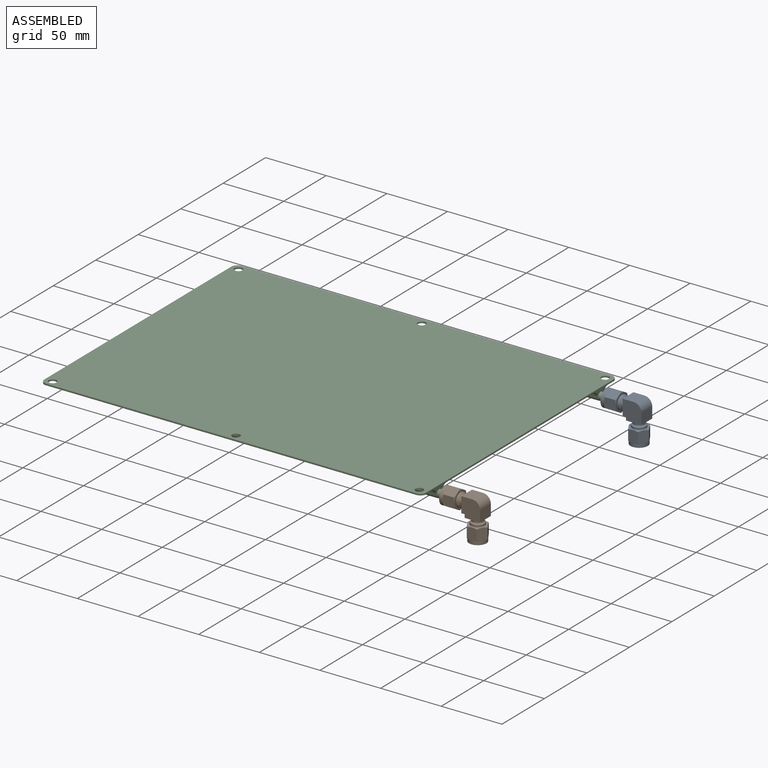
[diagram: assembled view]
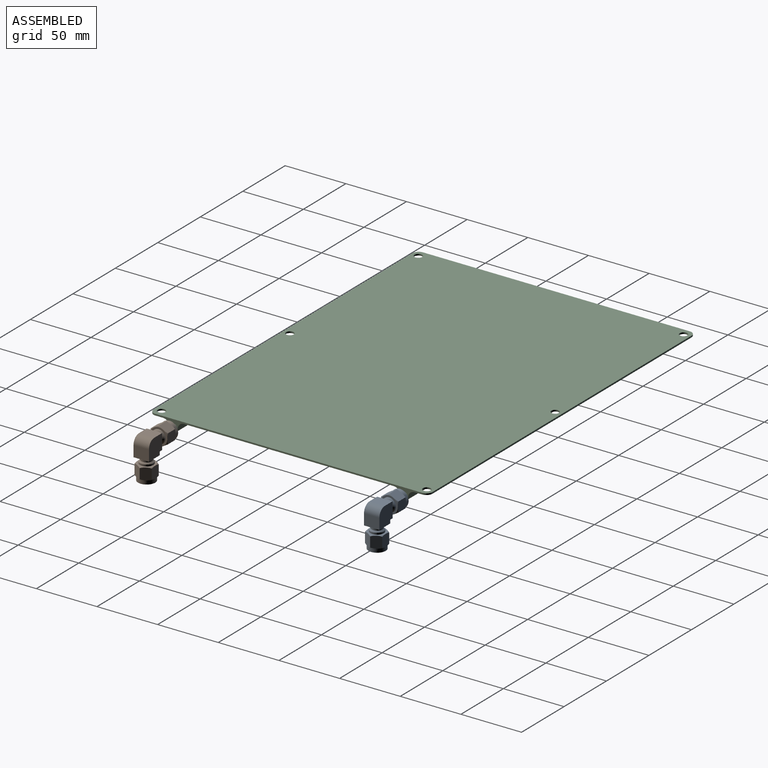
[diagram: assembled view, second angle]
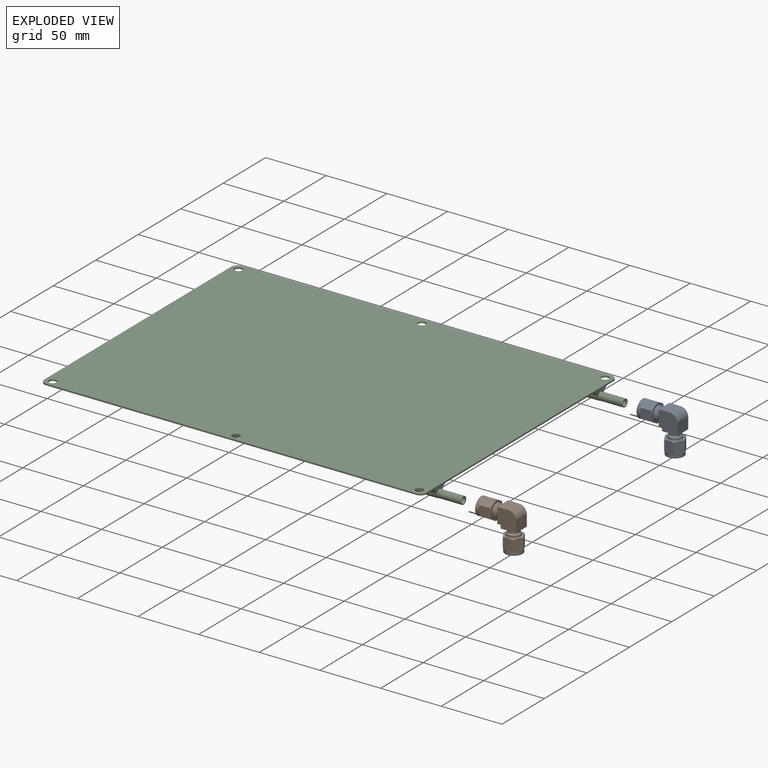
[diagram: exploded view]
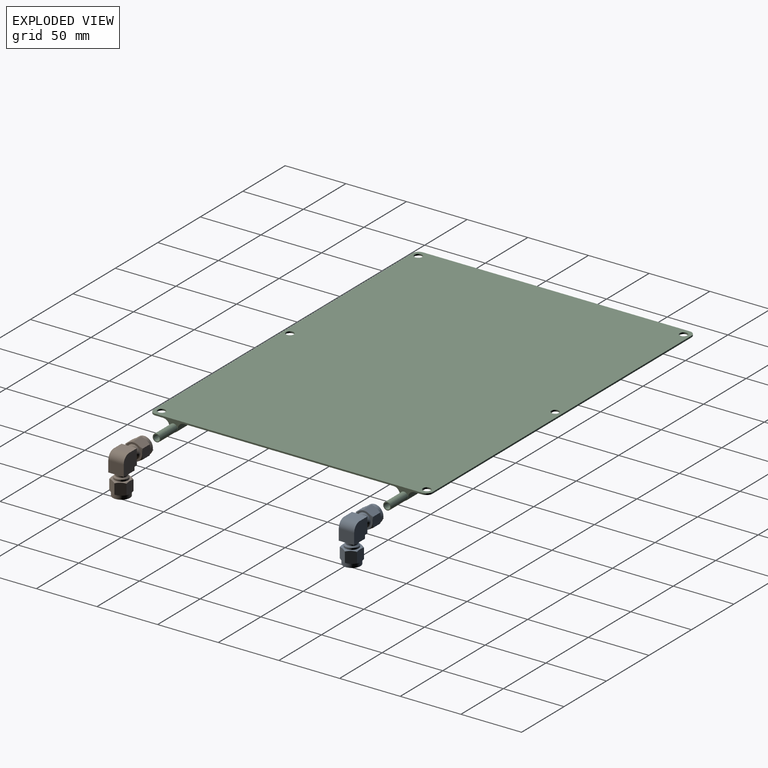
[diagram: exploded view, second angle]
ASSEMBLY  parts=3 mates=6
PART A: 64 faces, bbox 35.1x16.4x35.1 mm
  f0: cylinder r=3.17mm len=15.24mm, axis (1,0,0), area 304mm2, adj f1,f2
  f1: plane 6.35x6.35mm, normal (-1,0,0), area 13.4mm2, adj f0,f3
  f2: plane 14.22x14.22mm, normal (-1,0,0), area 127.2mm2, adj f0,f5
  f3: cylinder r=2.41mm len=11.68mm, axis (1,0,0), area 165.5mm2, adj f1,f4,f6
  f4: sphere r=2.41mm, area 18.3mm2, adj f3,f6
  f5: cylinder r=7.11mm len=14.22mm, axis (1,0,0), area 136.2mm2, adj f2,f7,f8,f9,f10,f11,f12
  f6: cylinder r=2.41mm len=11.68mm, axis (0,0,-1), area 165.5mm2, adj f3,f4,f13
  f7: cone r=7.66mm half-angle=60deg, axis (1,0,0), area 3.1mm2, adj f5,f14,f15
  f8: cone r=7.66mm half-angle=60deg, axis (1,0,0), area 3.1mm2, adj f5,f15,f16
  f9: cone r=7.66mm half-angle=60deg, axis (1,0,0), area 3.1mm2, adj f5,f16,f17
  f10: cone r=7.66mm half-angle=60deg, axis (1,0,0), area 3.1mm2, adj f5,f17,f18
  f11: cone r=7.66mm half-angle=60deg, axis (1,0,0), area 3.1mm2, adj f5,f18,f19
  f12: cone r=7.66mm half-angle=60deg, axis (1,0,0), area 3.1mm2, adj f5,f14,f19
  f13: plane 6.35x6.35mm, normal (0,0,-1), area 13.4mm2, adj f6,f20
  f14: plane 9.65x8.21mm, normal (0,1,0), area 75.7mm2, adj f7,f12,f15,f19,f21,f22
  f15: plane 9.65x7.11mm, normal (0,0.5,-0.87), area 75.7mm2, adj f7,f8,f14,f16,f22,f23
  f16: plane 9.65x7.11mm, normal (0,-0.5,-0.87), area 75.7mm2, adj f8,f9,f15,f17,f23,f24
  f17: plane 9.65x8.21mm, normal (0,-1,0), area 75.7mm2, adj f9,f10,f16,f18,f24,f25
  f18: plane 9.65x7.11mm, normal (0,-0.5,0.87), area 75.7mm2, adj f10,f11,f17,f19,f25,f26
  f19: plane 9.65x7.11mm, normal (0,0.5,0.87), area 75.7mm2, adj f11,f12,f14,f18,f21,f26
  f20: cylinder r=3.17mm len=15.24mm, axis (0,0,1), area 304mm2, adj f13,f27
  f21: cone r=7.66mm half-angle=60deg, axis (-1,0,0), area 3.1mm2, adj f14,f19,f28
  f22: cone r=7.66mm half-angle=60deg, axis (-1,0,0), area 3.1mm2, adj f14,f15,f28
  f23: cone r=7.66mm half-angle=60deg, axis (-1,0,0), area 3.1mm2, adj f15,f16,f28
  f24: cone r=7.66mm half-angle=60deg, axis (-1,0,0), area 3.1mm2, adj f16,f17,f28
  f25: cone r=7.66mm half-angle=60deg, axis (-1,0,0), area 3.1mm2, adj f17,f18,f28
  f26: cone r=7.66mm half-angle=60deg, axis (-1,0,0), area 3.1mm2, adj f18,f19,f28
  f27: plane 14.22x14.22mm, normal (0,0,-1), area 127.2mm2, adj f20,f29
  f28: plane 14.22x14.22mm, normal (1,0,0), area 61.9mm2, adj f21,f22,f23,f24,f25,f26,f30
  f29: cylinder r=7.11mm len=14.22mm, axis (0,0,1), area 136.2mm2, adj f27,f31,f32,f33,f34,f35,f36
  f30: cylinder r=5.56mm len=11.11mm, axis (1,0,0), area 51mm2, adj f28,f37
  f31: cone r=7.66mm half-angle=60deg, axis (0,0,1), area 3.1mm2, adj f29,f38,f39
  f32: cone r=7.66mm half-angle=60deg, axis (0,0,1), area 3.1mm2, adj f29,f39,f40
  f33: cone r=7.66mm half-angle=60deg, axis (0,0,1), area 3.1mm2, adj f29,f40,f41
  f34: cone r=7.66mm half-angle=60deg, axis (0,0,1), area 3.1mm2, adj f29,f41,f42
  f35: cone r=7.66mm half-angle=60deg, axis (0,0,1), area 3.1mm2, adj f29,f42,f43
  f36: cone r=7.66mm half-angle=60deg, axis (0,0,1), area 3.1mm2, adj f29,f38,f43
  f37: cone r=5.02mm half-angle=45deg, axis (-1,0,0), area 48.1mm2, adj f30,f44
  f38: plane 9.65x8.21mm, normal (0,1,0), area 75.7mm2, adj f31,f36,f39,f43,f45,f46
  f39: plane 9.65x7.11mm, normal (0.87,0.5,0), area 75.7mm2, adj f31,f32,f38,f40,f46,f47
  f40: plane 9.65x7.11mm, normal (0.87,-0.5,0), area 75.7mm2, adj f32,f33,f39,f41,f47,f48
  f41: plane 9.65x8.21mm, normal (0,-1,0), area 75.7mm2, adj f33,f34,f40,f42,f48,f49
  f42: plane 9.65x7.11mm, normal (-0.87,-0.5,0), area 75.7mm2, adj f34,f35,f41,f43,f49,f50
  f43: plane 9.65x7.11mm, normal (-0.87,0.5,0), area 75.7mm2, adj f35,f36,f38,f42,f45,f50
  f44: cylinder r=4.48mm len=8.95mm, axis (1,0,0), area 71.4mm2, adj f37,f52
  f45: cone r=7.66mm half-angle=60deg, axis (0,0,-1), area 3.1mm2, adj f38,f43,f55
  f46: cone r=7.66mm half-angle=60deg, axis (0,0,-1), area 3.1mm2, adj f38,f39,f55
  f47: cone r=7.66mm half-angle=60deg, axis (0,0,-1), area 3.1mm2, adj f39,f40,f55
  f48: cone r=7.66mm half-angle=60deg, axis (0,0,-1), area 3.1mm2, adj f40,f41,f55
  f49: cone r=7.66mm half-angle=60deg, axis (0,0,-1), area 3.1mm2, adj f41,f42,f55
  f50: cone r=7.66mm half-angle=60deg, axis (0,0,-1), area 3.1mm2, adj f42,f43,f55
  f51: plane 12.7x2.79mm, normal (0,0,-1), area 35.5mm2, adj f52,f57,f58,f59
  f52: plane 12.7x12.7mm, normal (-1,0,0), area 98.3mm2, adj f44,f51,f53,f57,f59
  f53: plane 12.7x9.14mm, normal (0,0,1), area 116.1mm2, adj f52,f54,f57,f59
  f54: cylinder r=6.35mm len=12.7mm, axis (0,-1,0), area 126.7mm2, adj f53,f57,f59,f60
  f55: plane 14.22x14.22mm, normal (0,0,1), area 61.9mm2, adj f45,f46,f47,f48,f49,f50,f56
  f56: cylinder r=5.56mm len=11.11mm, axis (0,0,1), area 51mm2, adj f55,f61
  f57: plane 15.49x15.49mm, normal (0,1,0), area 223.6mm2, adj f51,f52,f53,f54,f58,f60,f62
  f58: plane 12.7x2.79mm, normal (-1,0,0), area 35.5mm2, adj f51,f57,f59,f62
  f59: plane 15.49x15.49mm, normal (0,-1,0), area 223.6mm2, adj f51,f52,f53,f54,f58,f60,f62
  f60: plane 12.7x9.14mm, normal (1,0,0), area 116.1mm2, adj f54,f57,f59,f62
  f61: cone r=5.02mm half-angle=45deg, axis (0,0,-1), area 48.1mm2, adj f56,f63
  f62: plane 12.7x12.7mm, normal (0,0,-1), area 98.3mm2, adj f57,f58,f59,f60,f63
  f63: cylinder r=4.48mm len=8.95mm, axis (0,0,1), area 71.4mm2, adj f61,f62
PART B: same geometry as A
PART C: 210 faces, bbox 230x9.8x335 mm
  f0: plane 60.01x46.06mm, normal (0,-1,0), area 2764.1mm2, adj f1,f2,f154,f157
  f1: cylinder r=5.21mm len=60.01mm, axis (0,0,-1), area 486.2mm2, adj f0,f88,f153,f158
  f2: cylinder r=5.21mm len=60.01mm, axis (0,0,1), area 486.2mm2, adj f0,f92,f155,f156
  f3: plane 58.99x46.06mm, normal (0,-1,0), area 2717.3mm2, adj f4,f5,f160,f163
  f4: cylinder r=5.21mm len=58.99mm, axis (0,0,-1), area 478mm2, adj f3,f88,f161,f164
  f5: cylinder r=5.21mm len=58.99mm, axis (0,0,1), area 478mm2, adj f3,f92,f159,f162
  f6: plane 315x230mm, normal (0,-1,0), area 11856.3mm2, adj f7,f8,f27,f31,f32,f33,f34,f35
  f7: cylinder r=5.21mm len=58.74mm, axis (0,0,-1), area 475.9mm2, adj f6,f88,f100,f167
  f8: cylinder r=5.21mm len=58.74mm, axis (0,0,1), area 475.9mm2, adj f6,f92,f106,f165
  f9: plane 60.01x46.06mm, normal (0,-1,0), area 2764.1mm2, adj f10,f11,f172,f181
  f10: cylinder r=5.21mm len=60.01mm, axis (0,0,1), area 486.2mm2, adj f9,f84,f173,f182
  f11: cylinder r=5.21mm len=60.01mm, axis (0,0,-1), area 486.2mm2, adj f9,f88,f171,f180
  f12: plane 60.01x46.06mm, normal (0,-1,0), area 2764.1mm2, adj f13,f14,f178,f187
  f13: cylinder r=5.21mm len=60.01mm, axis (0,0,1), area 486.2mm2, adj f12,f92,f177,f188
  f14: cylinder r=5.21mm len=60.01mm, axis (0,0,-1), area 486.2mm2, adj f12,f96,f179,f186
  f15: plane 58.99x46.06mm, normal (0,-1,0), area 2717.3mm2, adj f16,f17,f184,f193
  f16: cylinder r=5.21mm len=58.99mm, axis (0,0,1), area 478mm2, adj f15,f84,f185,f194
  f17: cylinder r=5.21mm len=58.99mm, axis (0,0,-1), area 478mm2, adj f15,f88,f183,f192
  f18: plane 58.99x46.06mm, normal (0,-1,0), area 2717.3mm2, adj f19,f20,f190,f199
  f19: cylinder r=5.21mm len=58.99mm, axis (0,0,1), area 478mm2, adj f18,f92,f189,f198
  f20: cylinder r=5.21mm len=58.99mm, axis (0,0,-1), area 478mm2, adj f18,f96,f191,f200
  f21: plane 56.45x46.06mm, normal (0,-1,0), area 2600.4mm2, adj f22,f23,f112,f196
  f22: cylinder r=5.21mm len=58.74mm, axis (0,0,1), area 466.7mm2, adj f21,f84,f111,f197
  f23: cylinder r=5.21mm len=58.74mm, axis (0,0,-1), area 466.7mm2, adj f21,f88,f113,f195
  f24: plane 56.45x46.06mm, normal (0,-1,0), area 2600.4mm2, adj f25,f26,f120,f202
  f25: cylinder r=5.21mm len=58.74mm, axis (0,0,1), area 466.7mm2, adj f24,f92,f119,f201
  f26: cylinder r=5.21mm len=58.74mm, axis (0,0,-1), area 466.7mm2, adj f24,f96,f122,f203
  f27: plane 220x9.78mm, normal (0,0,1), area 345.9mm2, adj f6,f33,f34,f38,f77,f80,f82,f84
  f28: plane 289.84x195.08mm, normal (0,-1,0), area 6673.3mm2, adj f29,f30,f40,f42,f43,f45,f46,f48
  f29: plane 280.95x3.81mm, normal (-1,0,0), area 1070.4mm2, adj f28,f39,f40,f78
  f30: plane 280.95x3.81mm, normal (1,0,0), area 1070.4mm2, adj f28,f39,f42,f78
  f31: plane 305x1.27mm, normal (-1,0,0), area 387.4mm2, adj f6,f34,f35,f38
  f32: cylinder r=5mm len=5mm, axis (0,1,0), area 10mm2, adj f6,f36,f37,f38
  f33: cylinder r=5mm len=5mm, axis (0,-1,0), area 10mm2, adj f6,f27,f37,f38
  f34: cylinder r=5mm len=5mm, axis (0,1,0), area 10mm2, adj f6,f27,f31,f38
  f35: cylinder r=5mm len=5mm, axis (0,-1,0), area 10mm2, adj f6,f31,f36,f38
  f36: plane 220x1.27mm, normal (0,0,-1), area 279.4mm2, adj f6,f32,f35,f38
  f37: plane 305x1.27mm, normal (1,0,0), area 387.4mm2, adj f6,f32,f33,f38
  f38: plane 315x230mm, normal (0,1,0), area 72238.5mm2, adj f27,f31,f32,f33,f34,f35,f36,f37
  f39: cylinder r=2.54mm len=313.65mm, axis (0,0,-1), area 2763.8mm2, adj f29,f30,f41,f78,f81
  f40: cylinder r=3.81mm len=3.81mm, axis (0,-1,0), area 22.8mm2, adj f28,f29,f41,f43
  f41: torus R=6.35mm, axis (0,-1,0), area 79.6mm2, adj f39,f40,f42,f44
  f42: cylinder r=8.89mm len=8.89mm, axis (0,-1,0), area 53.2mm2, adj f28,f30,f41,f45
  f43: plane 50.63x3.81mm, normal (0,0,-1), area 192.9mm2, adj f28,f40,f44,f46
  f44: cylinder r=2.54mm len=50.63mm, axis (1,0,0), area 404mm2, adj f41,f43,f45,f47
  f45: plane 50.63x3.81mm, normal (0,0,1), area 192.9mm2, adj f28,f42,f44,f48
  f46: cylinder r=3.81mm len=3.81mm, axis (0,-1,0), area 22.8mm2, adj f28,f43,f47,f49
  f47: torus R=6.35mm, axis (0,-1,0), area 79.6mm2, adj f44,f46,f48,f50
  f48: cylinder r=8.89mm len=8.89mm, axis (0,-1,0), area 53.2mm2, adj f28,f45,f47,f51
  f49: plane 270x3.81mm, normal (1,0,0), area 1028.7mm2, adj f28,f46,f50,f52
  f50: cylinder r=2.54mm len=270mm, axis (0,0,1), area 2154.5mm2, adj f47,f49,f51,f53
  f51: plane 270x3.81mm, normal (-1,0,0), area 1028.7mm2, adj f28,f48,f50,f54
  f52: cylinder r=8.89mm len=8.89mm, axis (0,1,0), area 53.2mm2, adj f28,f49,f53,f55
  f53: torus R=6.35mm, axis (0,1,0), area 79.6mm2, adj f50,f52,f54,f56
  f54: cylinder r=3.81mm len=3.81mm, axis (0,1,0), area 22.8mm2, adj f28,f51,f53,f57
  f55: plane 50.63x3.81mm, normal (0,0,-1), area 192.9mm2, adj f28,f52,f56,f58
  f56: cylinder r=2.54mm len=50.63mm, axis (1,0,0), area 404mm2, adj f53,f55,f57,f59
  f57: plane 50.63x3.81mm, normal (0,0,1), area 192.9mm2, adj f28,f54,f56,f60
  f58: cylinder r=8.89mm len=8.89mm, axis (0,1,0), area 53.2mm2, adj f28,f55,f59,f61
  f59: torus R=6.35mm, axis (0,1,0), area 79.6mm2, adj f56,f58,f60,f62
  f60: cylinder r=3.81mm len=3.81mm, axis (0,1,0), area 22.8mm2, adj f28,f57,f59,f63
  f61: plane 270x3.81mm, normal (-1,0,0), area 1028.7mm2, adj f28,f58,f62,f64
  f62: cylinder r=2.54mm len=270mm, axis (0,0,-1), area 2154.5mm2, adj f59,f61,f63,f65
  f63: plane 270x3.81mm, normal (1,0,0), area 1028.7mm2, adj f28,f60,f62,f66
  f64: cylinder r=3.81mm len=3.81mm, axis (0,-1,0), area 22.8mm2, adj f28,f61,f65,f67
  f65: torus R=6.35mm, axis (0,-1,0), area 79.6mm2, adj f62,f64,f66,f68
  f66: cylinder r=8.89mm len=8.89mm, axis (0,-1,0), area 53.2mm2, adj f28,f63,f65,f69
  f67: plane 50.63x3.81mm, normal (0,0,-1), area 192.9mm2, adj f28,f64,f68,f70
  f68: cylinder r=2.54mm len=50.63mm, axis (1,0,0), area 404mm2, adj f65,f67,f69,f71
  f69: plane 50.63x3.81mm, normal (0,0,1), area 192.9mm2, adj f28,f66,f68,f72
  f70: cylinder r=3.81mm len=3.81mm, axis (0,-1,0), area 22.8mm2, adj f28,f67,f71,f73
  f71: torus R=6.35mm, axis (0,-1,0), area 79.6mm2, adj f68,f70,f72,f74
  f72: cylinder r=8.89mm len=8.89mm, axis (0,-1,0), area 53.2mm2, adj f28,f69,f71,f75
  f73: plane 280.95x3.81mm, normal (1,0,0), area 1070.4mm2, adj f28,f70,f74,f79
  f74: cylinder r=2.54mm len=313.65mm, axis (0,0,1), area 2763.8mm2, adj f71,f73,f75,f79,f83
  f75: plane 280.95x3.81mm, normal (-1,0,0), area 1070.4mm2, adj f28,f72,f74,f79
  f76: plane 56.45x46.06mm, normal (0,-1,0), area 2600.4mm2, adj f101,f103,f105,f151
  f77: plane 172.73x82.39mm, normal (0,-1,0), area 8384.8mm2, adj f27,f110,f114,f115,f116,f117,f118,f121
  f78: plane 5.08x3.81mm, normal (0,0,-1), area 9.2mm2, adj f28,f29,f30,f39
  f79: plane 5.08x3.81mm, normal (0,0,-1), area 9.2mm2, adj f28,f73,f74,f75
  f80: cylinder r=3.17mm len=20mm, axis (0,0,-1), area 399mm2, adj f27,f81
  f81: plane 6.35x6.35mm, normal (0,0,1), area 11.4mm2, adj f39,f80
  f82: cylinder r=3.17mm len=20mm, axis (0,0,-1), area 399mm2, adj f27,f83
  f83: plane 6.35x6.35mm, normal (0,0,1), area 11.4mm2, adj f74,f82
  f84: cylinder r=3.43mm len=293.65mm, axis (0,0,1), area 3133.7mm2, adj f10,f16,f22,f27,f85,f97,f110,f128
  f85: torus R=6.35mm, axis (0,-1,0), area 106.4mm2, adj f84,f86,f98,f111
  f86: cylinder r=3.43mm len=50.63mm, axis (-1,0,0), area 540.3mm2, adj f85,f87,f99,f112
  f87: torus R=6.35mm, axis (0,-1,0), area 106.4mm2, adj f86,f88,f100,f113
  f88: cylinder r=3.43mm len=270mm, axis (0,0,-1), area 2881.3mm2, adj f1,f4,f7,f11,f17,f23,f87,f89
  f89: torus R=6.35mm, axis (0,-1,0), area 106.4mm2, adj f88,f90,f102,f115
  f90: cylinder r=3.43mm len=50.63mm, axis (-1,0,0), area 540.3mm2, adj f89,f91,f103,f116
  f91: torus R=6.35mm, axis (0,-1,0), area 106.4mm2, adj f90,f92,f104,f117
  f92: cylinder r=3.43mm len=270mm, axis (0,0,1), area 2881.3mm2, adj f2,f5,f8,f13,f19,f25,f91,f93
  f93: torus R=6.35mm, axis (0,-1,0), area 106.4mm2, adj f92,f94,f106,f119
  f94: cylinder r=3.43mm len=50.63mm, axis (-1,0,0), area 540.3mm2, adj f93,f95,f107,f120
  f95: torus R=6.35mm, axis (0,-1,0), area 106.4mm2, adj f94,f96,f108,f122
  f96: cylinder r=3.43mm len=293.65mm, axis (0,0,-1), area 3133.7mm2, adj f14,f20,f26,f27,f95,f109,f121,f125
  f97: cylinder r=5.21mm len=293.65mm, axis (0,0,1), area 2379.3mm2, adj f6,f27,f84,f98
  f98: torus R=14.99mm, axis (0,-1,0), area 148.8mm2, adj f6,f85,f97,f99
  f99: cylinder r=5.21mm len=50.63mm, axis (-1,0,0), area 410.3mm2, adj f6,f86,f98,f100
  f100: torus R=14.99mm, axis (0,-1,0), area 148.8mm2, adj f6,f7,f87,f99
  f101: cylinder r=5.21mm len=58.74mm, axis (0,0,-1), area 466.7mm2, adj f76,f88,f102,f152
  f102: bspline ~5.21x5.21mm, area 16.3mm2, adj f89,f101,f103
  f103: cylinder r=5.21mm len=50.63mm, axis (-1,0,0), area 391.7mm2, adj f76,f90,f102,f104
  f104: bspline ~5.21x5.21mm, area 16.3mm2, adj f91,f103,f105
  f105: cylinder r=5.21mm len=58.74mm, axis (0,0,1), area 466.7mm2, adj f76,f92,f104,f150
  f106: torus R=14.99mm, axis (0,-1,0), area 148.8mm2, adj f6,f8,f93,f107
  f107: cylinder r=5.21mm len=50.63mm, axis (-1,0,0), area 410.3mm2, adj f6,f94,f106,f108
  f108: torus R=14.99mm, axis (0,-1,0), area 148.8mm2, adj f6,f95,f107,f109
  f109: cylinder r=5.21mm len=293.65mm, axis (0,0,-1), area 2379.3mm2, adj f6,f27,f96,f108
  f110: cylinder r=5.21mm len=82.39mm, axis (0,0,1), area 667.5mm2, adj f27,f77,f84,f170
  f111: bspline ~5.21x5.21mm, area 16.3mm2, adj f22,f85,f112
  f112: cylinder r=5.21mm len=50.63mm, axis (-1,0,0), area 391.7mm2, adj f21,f86,f111,f113
  f113: bspline ~5.21x5.21mm, area 16.3mm2, adj f23,f87,f112
  f114: cylinder r=5.21mm len=58.74mm, axis (0,0,-1), area 475.9mm2, adj f77,f88,f115,f168
  f115: torus R=14.99mm, axis (0,-1,0), area 148.8mm2, adj f77,f89,f114,f116
  f116: cylinder r=5.21mm len=50.63mm, axis (-1,0,0), area 410.3mm2, adj f77,f90,f115,f117
  f117: torus R=14.99mm, axis (0,-1,0), area 148.8mm2, adj f77,f91,f116,f118
  f118: cylinder r=5.21mm len=58.74mm, axis (0,0,1), area 475.9mm2, adj f77,f92,f117,f176
  f119: bspline ~5.21x5.21mm, area 16.3mm2, adj f25,f93,f120
  f120: cylinder r=5.21mm len=50.63mm, axis (-1,0,0), area 391.7mm2, adj f24,f94,f119,f122
  f121: cylinder r=5.21mm len=82.39mm, axis (0,0,-1), area 667.5mm2, adj f27,f77,f96,f174
  f122: bspline ~5.21x5.21mm, area 16.3mm2, adj f26,f95,f120
  f123: plane 46.27x0.05mm, normal (0,0,-1), area 2.3mm2, adj f125,f201,f202,f203
  f124: plane 46.27x0.05mm, normal (0,0,1), area 2.3mm2, adj f125,f198,f199,f200
  f125: plane 56.48x11.18mm, normal (0,-1,0), area 79.5mm2, adj f92,f96,f123,f124,f198,f200,f201,f203
  f126: plane 46.27x0.05mm, normal (0,0,1), area 2.3mm2, adj f128,f192,f193,f194
  f127: plane 46.27x0.05mm, normal (0,0,-1), area 2.3mm2, adj f128,f195,f196,f197
  f128: plane 56.48x11.18mm, normal (0,-1,0), area 79.5mm2, adj f84,f88,f126,f127,f192,f194,f195,f197
  f129: plane 46.27x0.05mm, normal (0,0,-1), area 2.3mm2, adj f131,f189,f190,f191
  f130: plane 46.27x0.05mm, normal (0,0,1), area 2.3mm2, adj f131,f186,f187,f188
  f131: plane 56.48x11.18mm, normal (0,-1,0), area 79.5mm2, adj f92,f96,f129,f130,f186,f188,f189,f191
  f132: plane 46.27x0.05mm, normal (0,0,1), area 2.3mm2, adj f134,f180,f181,f182
  f133: plane 46.27x0.05mm, normal (0,0,-1), area 2.3mm2, adj f134,f183,f184,f185
  f134: plane 56.48x11.18mm, normal (0,-1,0), area 79.5mm2, adj f84,f88,f132,f133,f180,f182,f183,f185
  f135: plane 46.27x0.05mm, normal (0,0,-1), area 2.3mm2, adj f137,f177,f178,f179
  f136: plane 46.27x0.05mm, normal (0,0,1), area 2.3mm2, adj f137,f174,f175,f176
  f137: plane 56.48x11.18mm, normal (0,-1,0), area 79.5mm2, adj f92,f96,f135,f136,f174,f176,f177,f179
  f138: plane 46.27x0.05mm, normal (0,0,1), area 2.3mm2, adj f140,f168,f169,f170
  f139: plane 46.27x0.05mm, normal (0,0,-1), area 2.3mm2, adj f140,f171,f172,f173
  f140: plane 56.48x11.18mm, normal (0,-1,0), area 79.5mm2, adj f84,f88,f138,f139,f168,f170,f171,f173
  f141: plane 46.27x0.05mm, normal (0,0,-1), area 2.3mm2, adj f143,f165,f166,f167
  f142: plane 46.27x0.05mm, normal (0,0,1), area 2.3mm2, adj f143,f162,f163,f164
  f143: plane 56.48x11.18mm, normal (0,-1,0), area 79.5mm2, adj f88,f92,f141,f142,f162,f164,f165,f167
  f144: plane 46.27x0.05mm, normal (0,0,-1), area 2.3mm2, adj f146,f159,f160,f161
  f145: plane 46.27x0.05mm, normal (0,0,1), area 2.3mm2, adj f146,f156,f157,f158
  f146: plane 56.48x11.18mm, normal (0,-1,0), area 79.5mm2, adj f88,f92,f144,f145,f156,f158,f159,f161
  f147: plane 46.27x0.05mm, normal (0,0,-1), area 2.3mm2, adj f149,f153,f154,f155
  f148: plane 46.27x0.05mm, normal (0,0,1), area 2.3mm2, adj f149,f150,f151,f152
  f149: plane 56.48x11.18mm, normal (0,-1,0), area 79.5mm2, adj f88,f92,f147,f148,f150,f152,f153,f155
  f150: torus R=0.13mm, axis (0,0,-1), area 41.5mm2, adj f105,f148,f149,f151
  f151: cylinder r=5.08mm len=46.06mm, axis (-1,0,0), area 367.6mm2, adj f76,f148,f150,f152
  f152: torus R=0.13mm, axis (0,0,-1), area 41.5mm2, adj f101,f148,f149,f151
  f153: torus R=0.13mm, axis (0,0,-1), area 41.5mm2, adj f1,f147,f149,f154
  f154: cylinder r=5.08mm len=46.06mm, axis (1,0,0), area 367.6mm2, adj f0,f147,f153,f155
  f155: torus R=0.13mm, axis (0,0,-1), area 41.5mm2, adj f2,f147,f149,f154
  f156: torus R=0.13mm, axis (0,0,-1), area 41.5mm2, adj f2,f145,f146,f157
  f157: cylinder r=5.08mm len=46.06mm, axis (-1,0,0), area 367.6mm2, adj f0,f145,f156,f158
  f158: torus R=0.13mm, axis (0,0,-1), area 41.5mm2, adj f1,f145,f146,f157
  f159: torus R=0.13mm, axis (0,0,-1), area 41.5mm2, adj f5,f144,f146,f160
  f160: cylinder r=5.08mm len=46.06mm, axis (1,0,0), area 367.6mm2, adj f3,f144,f159,f161
  f161: torus R=0.13mm, axis (0,0,-1), area 41.5mm2, adj f4,f144,f146,f160
  f162: torus R=0.13mm, axis (0,0,-1), area 41.5mm2, adj f5,f142,f143,f163
  f163: cylinder r=5.08mm len=46.06mm, axis (-1,0,0), area 367.6mm2, adj f3,f142,f162,f164
  f164: torus R=0.13mm, axis (0,0,-1), area 41.5mm2, adj f4,f142,f143,f163
  f165: torus R=0.13mm, axis (0,0,-1), area 41.5mm2, adj f8,f141,f143,f166
  f166: cylinder r=5.08mm len=46.06mm, axis (1,0,0), area 367.6mm2, adj f6,f141,f165,f167
  f167: torus R=0.13mm, axis (0,0,-1), area 41.5mm2, adj f7,f141,f143,f166
  f168: torus R=0.13mm, axis (0,0,-1), area 41.5mm2, adj f114,f138,f140,f169
  f169: cylinder r=5.08mm len=46.06mm, axis (-1,0,0), area 367.6mm2, adj f77,f138,f168,f170
  f170: torus R=0.13mm, axis (0,0,-1), area 41.5mm2, adj f110,f138,f140,f169
  f171: torus R=0.13mm, axis (0,0,-1), area 41.5mm2, adj f11,f139,f140,f172
  f172: cylinder r=5.08mm len=46.06mm, axis (1,0,0), area 367.6mm2, adj f9,f139,f171,f173
  f173: torus R=0.13mm, axis (0,0,-1), area 41.5mm2, adj f10,f139,f140,f172
  f174: torus R=0.13mm, axis (0,0,-1), area 41.5mm2, adj f121,f136,f137,f175
  f175: cylinder r=5.08mm len=46.06mm, axis (-1,0,0), area 367.6mm2, adj f77,f136,f174,f176
  f176: torus R=0.13mm, axis (0,0,-1), area 41.5mm2, adj f118,f136,f137,f175
  f177: torus R=0.13mm, axis (0,0,-1), area 41.5mm2, adj f13,f135,f137,f178
  f178: cylinder r=5.08mm len=46.06mm, axis (1,0,0), area 367.6mm2, adj f12,f135,f177,f179
  f179: torus R=0.13mm, axis (0,0,-1), area 41.5mm2, adj f14,f135,f137,f178
  f180: torus R=0.13mm, axis (0,0,-1), area 41.5mm2, adj f11,f132,f134,f181
  f181: cylinder r=5.08mm len=46.06mm, axis (-1,0,0), area 367.6mm2, adj f9,f132,f180,f182
  f182: torus R=0.13mm, axis (0,0,-1), area 41.5mm2, adj f10,f132,f134,f181
  f183: torus R=0.13mm, axis (0,0,-1), area 41.5mm2, adj f17,f133,f134,f184
  f184: cylinder r=5.08mm len=46.06mm, axis (1,0,0), area 367.6mm2, adj f15,f133,f183,f185
  f185: torus R=0.13mm, axis (0,0,-1), area 41.5mm2, adj f16,f133,f134,f184
  f186: torus R=0.13mm, axis (0,0,-1), area 41.5mm2, adj f14,f130,f131,f187
  f187: cylinder r=5.08mm len=46.06mm, axis (-1,0,0), area 367.6mm2, adj f12,f130,f186,f188
  f188: torus R=0.13mm, axis (0,0,-1), area 41.5mm2, adj f13,f130,f131,f187
  f189: torus R=0.13mm, axis (0,0,-1), area 41.5mm2, adj f19,f129,f131,f190
  f190: cylinder r=5.08mm len=46.06mm, axis (1,0,0), area 367.6mm2, adj f18,f129,f189,f191
  f191: torus R=0.13mm, axis (0,0,-1), area 41.5mm2, adj f20,f129,f131,f190
  f192: torus R=0.13mm, axis (0,0,-1), area 41.5mm2, adj f17,f126,f128,f193
  f193: cylinder r=5.08mm len=46.06mm, axis (-1,0,0), area 367.6mm2, adj f15,f126,f192,f194
  f194: torus R=0.13mm, axis (0,0,-1), area 41.5mm2, adj f16,f126,f128,f193
  f195: torus R=0.13mm, axis (0,0,-1), area 41.5mm2, adj f23,f127,f128,f196
  f196: cylinder r=5.08mm len=46.06mm, axis (1,0,0), area 367.6mm2, adj f21,f127,f195,f197
  f197: torus R=0.13mm, axis (0,0,-1), area 41.5mm2, adj f22,f127,f128,f196
  f198: torus R=0.13mm, axis (0,0,-1), area 41.5mm2, adj f19,f124,f125,f199
  f199: cylinder r=5.08mm len=46.06mm, axis (-1,0,0), area 367.6mm2, adj f18,f124,f198,f200
  f200: torus R=0.13mm, axis (0,0,-1), area 41.5mm2, adj f20,f124,f125,f199
  f201: torus R=0.13mm, axis (0,0,-1), area 41.5mm2, adj f25,f123,f125,f202
  f202: cylinder r=5.08mm len=46.06mm, axis (1,0,0), area 367.6mm2, adj f24,f123,f201,f203
  f203: torus R=0.13mm, axis (0,0,-1), area 41.5mm2, adj f26,f123,f125,f202
  f204: cylinder r=3.17mm len=6.35mm, axis (0,-1,0), area 25.3mm2, adj f6,f38
  f205: cylinder r=3.17mm len=6.35mm, axis (0,-1,0), area 25.3mm2, adj f6,f38
  f206: cylinder r=3.17mm len=6.35mm, axis (0,-1,0), area 25.3mm2, adj f6,f38
  f207: cylinder r=3.17mm len=6.35mm, axis (0,-1,0), area 25.3mm2, adj f6,f38
  f208: cylinder r=3.17mm len=6.35mm, axis (0,-1,0), area 25.3mm2, adj f6,f38
  f209: cylinder r=3.17mm len=6.35mm, axis (0,-1,0), area 25.3mm2, adj f6,f38
PLACE A rot(axis=(0.71,0,0.71),180deg) t=(76.42,559.41,-249.95)mm
PLACE B t=(49.5,369.41,-223.03)mm
PLACE C rot(axis=(0.58,0.58,0.58),120deg) t=(-112.76,464.41,-221.57)mm
MATE cylindrical A.f20 <-> C.f82  axis (1,0,0) through (49.5,559.41,-223.03)mm
MATE cylindrical B.f0 <-> C.f84  axis (1,0,0) through (57.12,369.41,-223.03)mm
MATE parallel A.f52 <-> C.f76  axis (0,0,-1) through (70.07,565.76,-232.17)mm
MATE fastened A.f63 <-> C.f82  axis (-1,0,0) through (64.74,559.41,-223.03)mm
MATE planar B.f0 <-> C.f84  axis (-1,0,0) through (64.74,369.41,-223.03)mm
MATE parallel C.f31 <-> B.f59  axis (0,-1,0) through (-112.76,349.41,-217.32)mm
